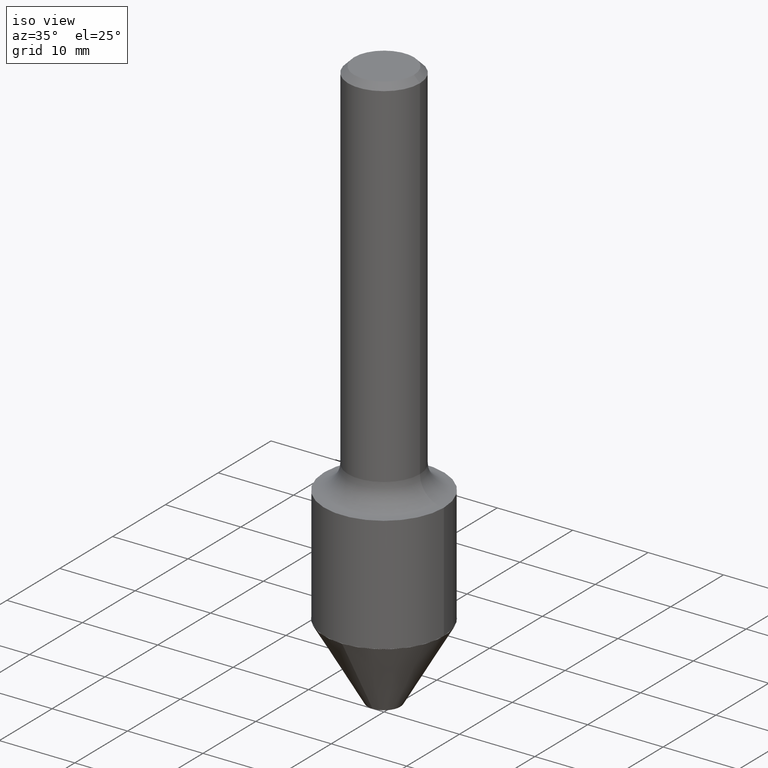
[diagram: clean part render]
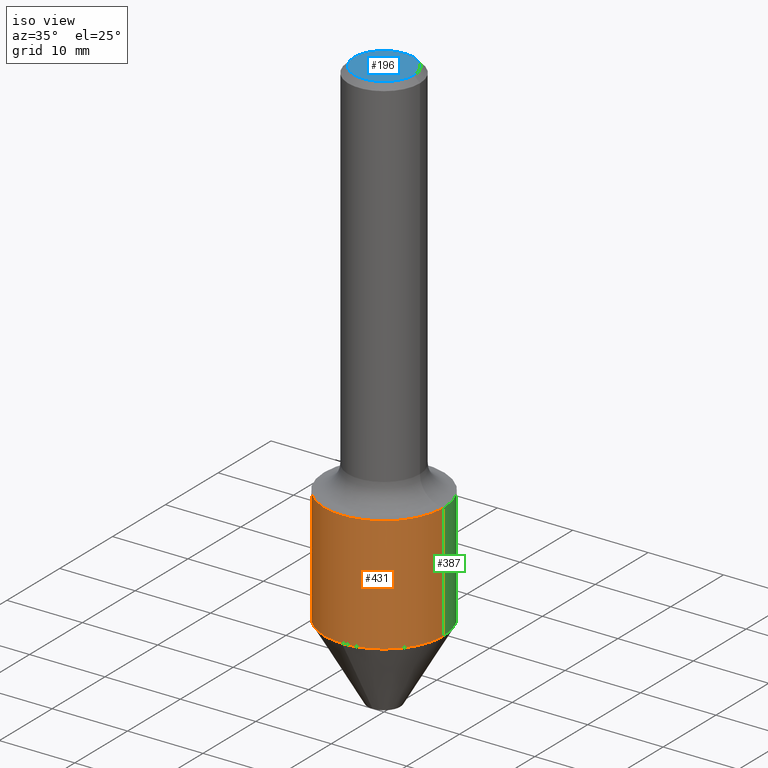
[diagram: same view with three faces highlighted in distinct colors, each labeled with its STEP entity id]
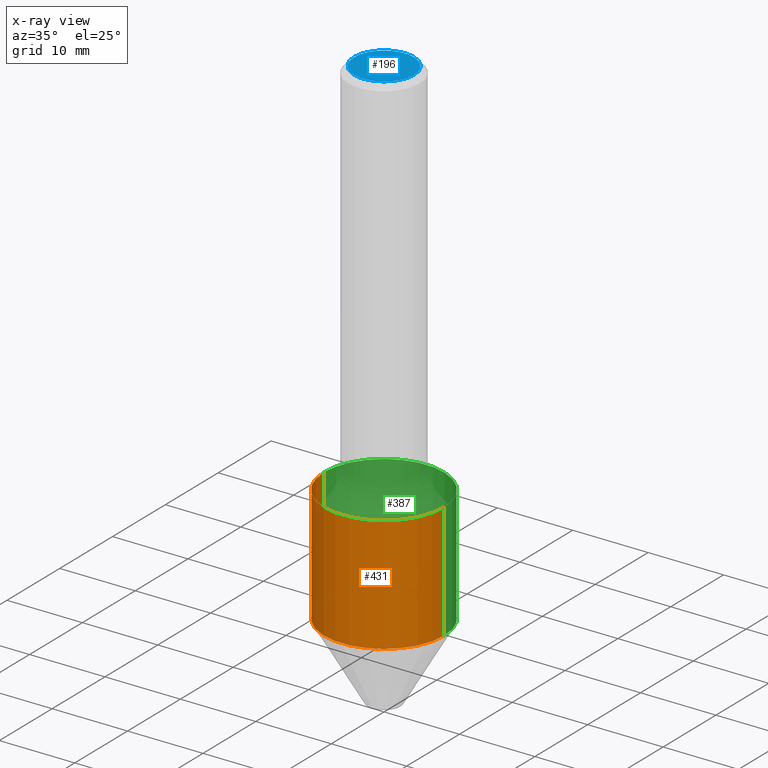
[diagram: x-ray of the same camera — body ghosted, the three highlighted faces saturated]
A machine part, iso view with three faces highlighted in distinct colors.
The next image is the same camera in x-ray (body ghosted, the three faces saturated) — at least one of them is partly hidden behind the body in this view.
Their STEP definitions:

[orange] entity #431 — the highlighted cylindrical surface (partial cylindrical patch) has radius 7.9375 mm, axis along (-0, 0, 1).
#15 = ORIENTED_EDGE ( 'NONE', *, *, #254, .F. ) ;
#17 = ORIENTED_EDGE ( 'NONE', *, *, #282, .F. ) ;
#28 = LINE ( 'NONE', #98, #212 ) ;
#45 = VERTEX_POINT ( 'NONE', #84 ) ;
#47 = CIRCLE ( 'NONE', #344, 0.3125000000000000000 ) ;
#84 = CARTESIAN_POINT ( 'NONE',  ( -0.3125000000000000000, -4.762516628435978873E-15, -2.000000000000000444 ) ) ;
#89 = DIRECTION ( 'NONE',  ( 1.000000000000000000, -6.982962677686269077E-15, 0.000000000000000000 ) ) ;
#95 = EDGE_CURVE ( 'NONE', #286, #484, #47, .T. ) ;
#98 = CARTESIAN_POINT ( 'NONE',  ( -0.3125000000000000000, 2.220446049250313081E-15, -1.537167215704658232E-29 ) ) ;
#106 = DIRECTION ( 'NONE',  ( -2.445468806185136877E-29, 3.491481338843145188E-15, 1.000000000000000000 ) ) ;
#145 = CYLINDRICAL_SURFACE ( 'NONE', #190, 0.3125000000000000000 ) ;
#151 = ORIENTED_EDGE ( 'NONE', *, *, #95, .T. ) ;
#154 = CARTESIAN_POINT ( 'NONE',  ( 0.3125000000000000000, -9.165138514463251879E-15, -2.000000000000000444 ) ) ;
#158 = CARTESIAN_POINT ( 'NONE',  ( 0.3125000000000000000, -1.127733962296143395E-14, -2.604958441278117487 ) ) ;
#185 = DIRECTION ( 'NONE',  ( -2.445468806185136597E-29, 3.491481338843145583E-15, 1.000000000000000000 ) ) ;
#190 = AXIS2_PLACEMENT_3D ( 'NONE', #305, #467, #265 ) ;
#207 = VECTOR ( 'NONE', #384, 39.37007874015748143 ) ;
#212 = VECTOR ( 'NONE', #106, 39.37007874015748143 ) ;
#254 = EDGE_CURVE ( 'NONE', #286, #45, #28, .T. ) ;
#265 = DIRECTION ( 'NONE',  ( 1.000000000000000000, -6.982962677686266711E-15, 4.876176775795936353E-29 ) ) ;
#273 = CIRCLE ( 'NONE', #341, 0.3125000000000000000 ) ;
#282 = EDGE_CURVE ( 'NONE', #45, #294, #273, .T. ) ;
#286 = VERTEX_POINT ( 'NONE', #350 ) ;
#294 = VERTEX_POINT ( 'NONE', #154 ) ;
#305 = CARTESIAN_POINT ( 'NONE',  ( 0.000000000000000000, 0.000000000000000000, 0.000000000000000000 ) ) ;
#341 = AXIS2_PLACEMENT_3D ( 'NONE', #425, #185, #430 ) ;
#342 = CARTESIAN_POINT ( 'NONE',  ( 0.3125000000000000000, -2.182175836776958347E-15, 1.523805242436230075E-29 ) ) ;
#344 = AXIS2_PLACEMENT_3D ( 'NONE', #455, #460, #89 ) ;
#350 = CARTESIAN_POINT ( 'NONE',  ( -0.3125000000000000000, -5.818617182685069910E-15, -2.604958441278117487 ) ) ;
#353 = EDGE_CURVE ( 'NONE', #484, #294, #474, .T. ) ;
#384 = DIRECTION ( 'NONE',  ( -2.445468806185136877E-29, 3.491481338843145188E-15, 1.000000000000000000 ) ) ;
#425 = CARTESIAN_POINT ( 'NONE',  ( 4.890937612370273754E-29, -6.982962677686291954E-15, -2.000000000000000444 ) ) ;
#430 = DIRECTION ( 'NONE',  ( 1.000000000000000000, -6.982962677686269077E-15, 0.000000000000000000 ) ) ;
#431 = ADVANCED_FACE ( 'NONE', ( #507 ), #145, .T. ) ;
#455 = CARTESIAN_POINT ( 'NONE',  ( 6.370344609554292470E-29, -9.095163786184474028E-15, -2.604958441278117487 ) ) ;
#460 = DIRECTION ( 'NONE',  ( -2.445468806185136597E-29, 3.491481338843145583E-15, 1.000000000000000000 ) ) ;
#467 = DIRECTION ( 'NONE',  ( -2.445468806185136597E-29, 3.491481338843145583E-15, 1.000000000000000000 ) ) ;
#474 = LINE ( 'NONE', #342, #207 ) ;
#479 = ORIENTED_EDGE ( 'NONE', *, *, #353, .T. ) ;
#484 = VERTEX_POINT ( 'NONE', #158 ) ;
#492 = EDGE_LOOP ( 'NONE', ( #15, #151, #479, #17 ) ) ;
#507 = FACE_OUTER_BOUND ( 'NONE', #492, .T. ) ;

[blue] entity #196 — the highlighted planar face has unit normal (0, -0, -1).
#5 = CARTESIAN_POINT ( 'NONE',  ( -1.871772216193331159E-46, 2.672394653685611172E-32, 7.654042494670965249E-18 ) ) ;
#19 = AXIS2_PLACEMENT_3D ( 'NONE', #183, #114, #359 ) ;
#33 = FACE_OUTER_BOUND ( 'NONE', #443, .T. ) ;
#87 = EDGE_CURVE ( 'NONE', #420, #88, #326, .T. ) ;
#88 = VERTEX_POINT ( 'NONE', #176 ) ;
#103 = PLANE ( 'NONE',  #19 ) ;
#108 = DIRECTION ( 'NONE',  ( 1.000000000000000000, -6.982962677686266711E-15, 4.876046809215620980E-29 ) ) ;
#114 = DIRECTION ( 'NONE',  ( 2.438088387897960049E-29, -3.491481338843145188E-15, -1.000000000000000000 ) ) ;
#132 = DIRECTION ( 'NONE',  ( -2.445468806185136597E-29, 3.491481338843145583E-15, 1.000000000000000000 ) ) ;
#161 = CIRCLE ( 'NONE', #172, 0.1563000000000000500 ) ;
#172 = AXIS2_PLACEMENT_3D ( 'NONE', #261, #502, #108 ) ;
#176 = CARTESIAN_POINT ( 'NONE',  ( 0.1563000000000000500, -1.233786714702880152E-15, 7.654042494679095754E-18 ) ) ;
#181 = DIRECTION ( 'NONE',  ( 1.000000000000000000, -6.982962677686266711E-15, 4.876046809215620980E-29 ) ) ;
#183 = CARTESIAN_POINT ( 'NONE',  ( 1.091437066522363671E-15, 0.1563000000000000500, -5.418915120138483345E-16 ) ) ;
#196 = ADVANCED_FACE ( 'NONE', ( #33 ), #103, .F. ) ;
#261 = CARTESIAN_POINT ( 'NONE',  ( -1.871772216193331159E-46, 2.672394653685611172E-32, 7.654042494670965249E-18 ) ) ;
#275 = AXIS2_PLACEMENT_3D ( 'NONE', #5, #132, #181 ) ;
#316 = ORIENTED_EDGE ( 'NONE', *, *, #87, .T. ) ;
#326 = CIRCLE ( 'NONE', #275, 0.1563000000000000500 ) ;
#359 = DIRECTION ( 'NONE',  ( -1.000000000000000000, 6.982962677686265922E-15, -4.876176775795935793E-29 ) ) ;
#381 = CARTESIAN_POINT ( 'NONE',  ( -0.1563000000000000500, 1.145904175408315963E-15, 7.654042494663141351E-18 ) ) ;
#392 = EDGE_CURVE ( 'NONE', #88, #420, #161, .T. ) ;
#420 = VERTEX_POINT ( 'NONE', #381 ) ;
#443 = EDGE_LOOP ( 'NONE', ( #316, #514 ) ) ;
#502 = DIRECTION ( 'NONE',  ( -2.445468806185136597E-29, 3.491481338843145583E-15, 1.000000000000000000 ) ) ;
#514 = ORIENTED_EDGE ( 'NONE', *, *, #392, .T. ) ;

[green] entity #387 — the highlighted cylindrical surface (partial cylindrical patch) has radius 7.9375 mm, axis along (-0, 0, 1).
#27 = DIRECTION ( 'NONE',  ( -2.445468806185136597E-29, 3.491481338843145583E-15, 1.000000000000000000 ) ) ;
#28 = LINE ( 'NONE', #98, #212 ) ;
#45 = VERTEX_POINT ( 'NONE', #84 ) ;
#56 = FACE_OUTER_BOUND ( 'NONE', #456, .T. ) ;
#70 = AXIS2_PLACEMENT_3D ( 'NONE', #143, #463, #311 ) ;
#77 = ORIENTED_EDGE ( 'NONE', *, *, #243, .F. ) ;
#84 = CARTESIAN_POINT ( 'NONE',  ( -0.3125000000000000000, -4.762516628435978873E-15, -2.000000000000000444 ) ) ;
#94 = DIRECTION ( 'NONE',  ( -2.445468806185136597E-29, 3.491481338843145583E-15, 1.000000000000000000 ) ) ;
#98 = CARTESIAN_POINT ( 'NONE',  ( -0.3125000000000000000, 2.220446049250313081E-15, -1.537167215704658232E-29 ) ) ;
#106 = DIRECTION ( 'NONE',  ( -2.445468806185136877E-29, 3.491481338843145188E-15, 1.000000000000000000 ) ) ;
#143 = CARTESIAN_POINT ( 'NONE',  ( 4.890937612370273754E-29, -6.982962677686291954E-15, -2.000000000000000444 ) ) ;
#148 = CIRCLE ( 'NONE', #70, 0.3125000000000000000 ) ;
#154 = CARTESIAN_POINT ( 'NONE',  ( 0.3125000000000000000, -9.165138514463251879E-15, -2.000000000000000444 ) ) ;
#158 = CARTESIAN_POINT ( 'NONE',  ( 0.3125000000000000000, -1.127733962296143395E-14, -2.604958441278117487 ) ) ;
#184 = DIRECTION ( 'NONE',  ( 1.000000000000000000, -6.982962677686266711E-15, 4.876176775795936353E-29 ) ) ;
#207 = VECTOR ( 'NONE', #384, 39.37007874015748143 ) ;
#212 = VECTOR ( 'NONE', #106, 39.37007874015748143 ) ;
#221 = DIRECTION ( 'NONE',  ( 1.000000000000000000, -6.982962677686269077E-15, 0.000000000000000000 ) ) ;
#243 = EDGE_CURVE ( 'NONE', #294, #45, #148, .T. ) ;
#250 = ORIENTED_EDGE ( 'NONE', *, *, #423, .T. ) ;
#254 = EDGE_CURVE ( 'NONE', #286, #45, #28, .T. ) ;
#284 = AXIS2_PLACEMENT_3D ( 'NONE', #346, #27, #184 ) ;
#286 = VERTEX_POINT ( 'NONE', #350 ) ;
#294 = VERTEX_POINT ( 'NONE', #154 ) ;
#301 = CARTESIAN_POINT ( 'NONE',  ( 6.370344609554292470E-29, -9.095163786184474028E-15, -2.604958441278117487 ) ) ;
#306 = CIRCLE ( 'NONE', #416, 0.3125000000000000000 ) ;
#311 = DIRECTION ( 'NONE',  ( 1.000000000000000000, -6.982962677686269077E-15, 0.000000000000000000 ) ) ;
#342 = CARTESIAN_POINT ( 'NONE',  ( 0.3125000000000000000, -2.182175836776958347E-15, 1.523805242436230075E-29 ) ) ;
#346 = CARTESIAN_POINT ( 'NONE',  ( 0.000000000000000000, 0.000000000000000000, 0.000000000000000000 ) ) ;
#349 = CYLINDRICAL_SURFACE ( 'NONE', #284, 0.3125000000000000000 ) ;
#350 = CARTESIAN_POINT ( 'NONE',  ( -0.3125000000000000000, -5.818617182685069910E-15, -2.604958441278117487 ) ) ;
#353 = EDGE_CURVE ( 'NONE', #484, #294, #474, .T. ) ;
#384 = DIRECTION ( 'NONE',  ( -2.445468806185136877E-29, 3.491481338843145188E-15, 1.000000000000000000 ) ) ;
#387 = ADVANCED_FACE ( 'NONE', ( #56 ), #349, .T. ) ;
#416 = AXIS2_PLACEMENT_3D ( 'NONE', #301, #94, #221 ) ;
#423 = EDGE_CURVE ( 'NONE', #484, #286, #306, .T. ) ;
#449 = ORIENTED_EDGE ( 'NONE', *, *, #353, .F. ) ;
#454 = ORIENTED_EDGE ( 'NONE', *, *, #254, .T. ) ;
#456 = EDGE_LOOP ( 'NONE', ( #250, #454, #77, #449 ) ) ;
#463 = DIRECTION ( 'NONE',  ( -2.445468806185136597E-29, 3.491481338843145583E-15, 1.000000000000000000 ) ) ;
#474 = LINE ( 'NONE', #342, #207 ) ;
#484 = VERTEX_POINT ( 'NONE', #158 ) ;